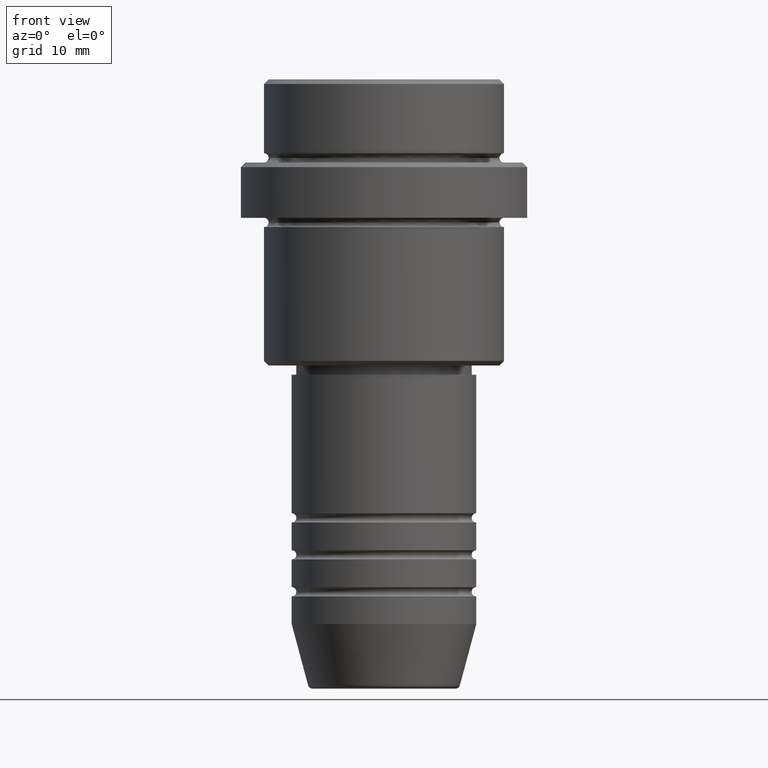
[diagram: clean part render]
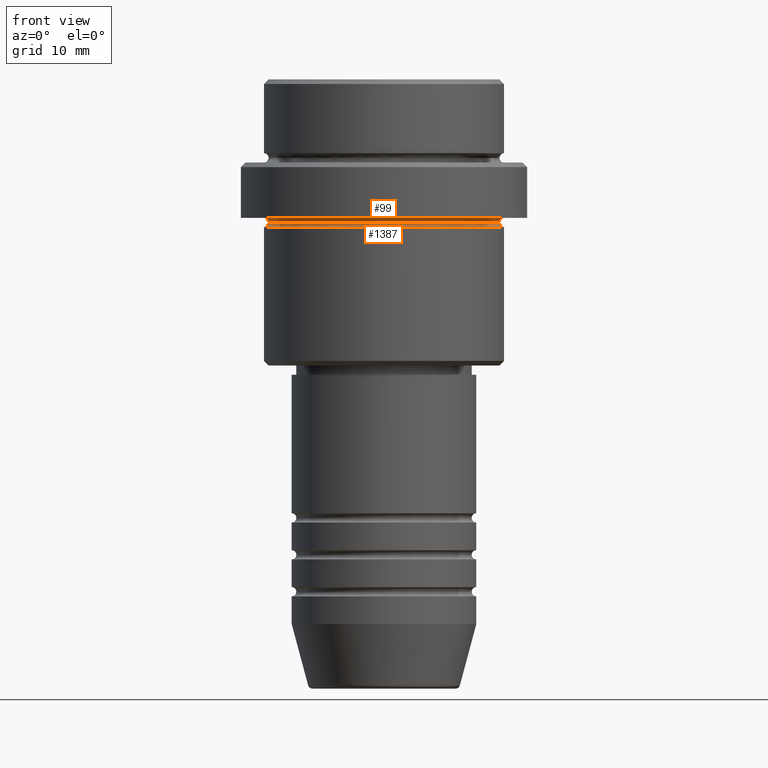
[diagram: same view with one multi-face feature highlighted, each face labeled with its STEP entity id]
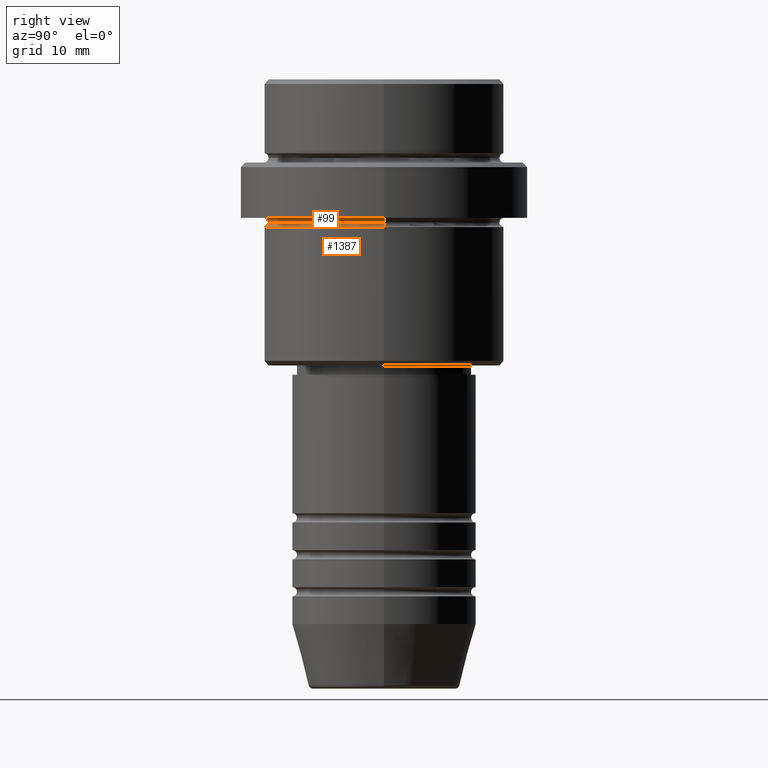
[diagram: same view with one multi-face feature highlighted, each face labeled with its STEP entity id]
A machine part, front view. The highlighted faces form ONE feature: a constant-radius fillet chain: 2 tangent blend faces with common blend radius 0.5 mm. The faces share edges in the B-rep.
A second angle (right view) of the same feature is appended — it is thin or edge-on in the first view.
Their STEP definitions:
[1] entity #1387 (Torus):
#3 = EDGE_CURVE ( 'NONE', #1304, #48, #64, .T. ) ;
#48 = VERTEX_POINT ( 'NONE', #1043 ) ;
#64 = CIRCLE ( 'NONE', #739, 0.5000000000000004441 ) ;
#74 = DIRECTION ( 'NONE',  ( -1.000000000000000000, 0.000000000000000000, 0.000000000000000000 ) ) ;
#155 = AXIS2_PLACEMENT_3D ( 'NONE', #808, #276, #74 ) ;
#191 = CIRCLE ( 'NONE', #881, 0.5000000000000004441 ) ;
#218 = ORIENTED_EDGE ( 'NONE', *, *, #1131, .T. ) ;
#223 = DIRECTION ( 'NONE',  ( 0.000000000000000000, 0.000000000000000000, -1.000000000000000000 ) ) ;
#246 = CIRCLE ( 'NONE', #770, 12.49999999999999467 ) ;
#276 = DIRECTION ( 'NONE',  ( 0.000000000000000000, 0.000000000000000000, -1.000000000000000000 ) ) ;
#364 = VERTEX_POINT ( 'NONE', #1193 ) ;
#384 = DIRECTION ( 'NONE',  ( -1.000000000000000000, 0.000000000000000000, 0.000000000000000000 ) ) ;
#425 = DIRECTION ( 'NONE',  ( -0.000000000000000000, -1.000000000000000000, -0.000000000000000000 ) ) ;
#483 = DIRECTION ( 'NONE',  ( -1.000000000000000000, -1.224646799147353454E-16, 0.000000000000000000 ) ) ;
#549 = DIRECTION ( 'NONE',  ( 1.000000000000000000, 0.000000000000000000, 0.000000000000000000 ) ) ;
#569 = CARTESIAN_POINT ( 'NONE',  ( 13.00000000000000000, 0.000000000000000000, -16.00000000000000000 ) ) ;
#574 = ORIENTED_EDGE ( 'NONE', *, *, #691, .F. ) ;
#591 = DIRECTION ( 'NONE',  ( -1.224646799147353207E-16, 1.000000000000000000, 0.000000000000000000 ) ) ;
#688 = DIRECTION ( 'NONE',  ( 0.000000000000000000, 0.000000000000000000, -1.000000000000000000 ) ) ;
#691 = EDGE_CURVE ( 'NONE', #1244, #364, #191, .T. ) ;
#739 = AXIS2_PLACEMENT_3D ( 'NONE', #926, #591, #483 ) ;
#758 = CARTESIAN_POINT ( 'NONE',  ( 0.000000000000000000, 0.000000000000000000, -16.00000000000000000 ) ) ;
#770 = AXIS2_PLACEMENT_3D ( 'NONE', #1050, #688, #384 ) ;
#808 = CARTESIAN_POINT ( 'NONE',  ( 0.000000000000000000, 0.000000000000000000, -15.50000000000000000 ) ) ;
#825 = FACE_OUTER_BOUND ( 'NONE', #1359, .T. ) ;
#826 = ORIENTED_EDGE ( 'NONE', *, *, #3, .T. ) ;
#866 = TOROIDAL_SURFACE ( 'NONE', #155, 12.99999999999999645, 0.5000000000000000000 ) ;
#880 = CARTESIAN_POINT ( 'NONE',  ( -12.99999999999999645, 0.000000000000000000, -15.50000000000000000 ) ) ;
#881 = AXIS2_PLACEMENT_3D ( 'NONE', #880, #425, #223 ) ;
#926 = CARTESIAN_POINT ( 'NONE',  ( 12.99999999999999645, 1.592040838891558701E-15, -15.50000000000000000 ) ) ;
#935 = ORIENTED_EDGE ( 'NONE', *, *, #1373, .T. ) ;
#987 = DIRECTION ( 'NONE',  ( -0.000000000000000000, -0.000000000000000000, 1.000000000000000000 ) ) ;
#1043 = CARTESIAN_POINT ( 'NONE',  ( 12.49999999999999467, 1.561424668912874914E-15, -15.50000000000000000 ) ) ;
#1050 = CARTESIAN_POINT ( 'NONE',  ( 0.000000000000000000, 0.000000000000000000, -15.50000000000000000 ) ) ;
#1131 = EDGE_CURVE ( 'NONE', #1244, #1304, #1294, .T. ) ;
#1193 = CARTESIAN_POINT ( 'NONE',  ( -12.49999999999999467, 0.000000000000000000, -15.50000000000000000 ) ) ;
#1218 = CARTESIAN_POINT ( 'NONE',  ( -13.00000000000000000, 1.592040838891559095E-15, -16.00000000000000000 ) ) ;
#1244 = VERTEX_POINT ( 'NONE', #1218 ) ;
#1272 = AXIS2_PLACEMENT_3D ( 'NONE', #758, #987, #549 ) ;
#1294 = CIRCLE ( 'NONE', #1272, 13.00000000000000000 ) ;
#1304 = VERTEX_POINT ( 'NONE', #569 ) ;
#1359 = EDGE_LOOP ( 'NONE', ( #218, #826, #935, #574 ) ) ;
#1373 = EDGE_CURVE ( 'NONE', #48, #364, #246, .T. ) ;
#1387 = ADVANCED_FACE ( 'NONE', ( #825 ), #866, .F. ) ;
[2] entity #99 (Torus):
#5 = CARTESIAN_POINT ( 'NONE',  ( -12.99999999999999645, 0.000000000000000000, -15.50000000000000000 ) ) ;
#14 = DIRECTION ( 'NONE',  ( 0.000000000000000000, 0.000000000000000000, -1.000000000000000000 ) ) ;
#48 = VERTEX_POINT ( 'NONE', #1043 ) ;
#56 = DIRECTION ( 'NONE',  ( -1.224646799147353207E-16, 1.000000000000000000, 0.000000000000000000 ) ) ;
#99 = ADVANCED_FACE ( 'NONE', ( #596 ), #1111, .F. ) ;
#169 = AXIS2_PLACEMENT_3D ( 'NONE', #1117, #56, #477 ) ;
#246 = CIRCLE ( 'NONE', #770, 12.49999999999999467 ) ;
#275 = DIRECTION ( 'NONE',  ( 0.000000000000000000, 0.000000000000000000, -1.000000000000000000 ) ) ;
#305 = CIRCLE ( 'NONE', #1052, 12.99999999999999645 ) ;
#314 = VERTEX_POINT ( 'NONE', #1081 ) ;
#340 = DIRECTION ( 'NONE',  ( -0.000000000000000000, -0.000000000000000000, 1.000000000000000000 ) ) ;
#361 = ORIENTED_EDGE ( 'NONE', *, *, #1109, .F. ) ;
#364 = VERTEX_POINT ( 'NONE', #1193 ) ;
#384 = DIRECTION ( 'NONE',  ( -1.000000000000000000, 0.000000000000000000, 0.000000000000000000 ) ) ;
#386 = EDGE_CURVE ( 'NONE', #48, #314, #789, .T. ) ;
#477 = DIRECTION ( 'NONE',  ( -1.000000000000000000, -1.224646799147353454E-16, 0.000000000000000000 ) ) ;
#497 = ORIENTED_EDGE ( 'NONE', *, *, #386, .T. ) ;
#515 = CARTESIAN_POINT ( 'NONE',  ( -12.99999999999999645, 0.000000000000000000, -15.00000000000000000 ) ) ;
#528 = VERTEX_POINT ( 'NONE', #515 ) ;
#596 = FACE_OUTER_BOUND ( 'NONE', #1143, .T. ) ;
#688 = DIRECTION ( 'NONE',  ( 0.000000000000000000, 0.000000000000000000, -1.000000000000000000 ) ) ;
#770 = AXIS2_PLACEMENT_3D ( 'NONE', #1050, #688, #384 ) ;
#784 = DIRECTION ( 'NONE',  ( -1.000000000000000000, 0.000000000000000000, 0.000000000000000000 ) ) ;
#789 = CIRCLE ( 'NONE', #169, 0.5000000000000004441 ) ;
#811 = ORIENTED_EDGE ( 'NONE', *, *, #1373, .F. ) ;
#913 = AXIS2_PLACEMENT_3D ( 'NONE', #5, #1196, #14 ) ;
#952 = AXIS2_PLACEMENT_3D ( 'NONE', #1279, #275, #1270 ) ;
#976 = CIRCLE ( 'NONE', #913, 0.5000000000000004441 ) ;
#1043 = CARTESIAN_POINT ( 'NONE',  ( 12.49999999999999467, 1.561424668912874914E-15, -15.50000000000000000 ) ) ;
#1050 = CARTESIAN_POINT ( 'NONE',  ( 0.000000000000000000, 0.000000000000000000, -15.50000000000000000 ) ) ;
#1052 = AXIS2_PLACEMENT_3D ( 'NONE', #1105, #340, #784 ) ;
#1081 = CARTESIAN_POINT ( 'NONE',  ( 12.99999999999999645, 1.592040838891558701E-15, -15.00000000000000000 ) ) ;
#1105 = CARTESIAN_POINT ( 'NONE',  ( 0.000000000000000000, 0.000000000000000000, -15.00000000000000000 ) ) ;
#1109 = EDGE_CURVE ( 'NONE', #364, #528, #976, .T. ) ;
#1111 = TOROIDAL_SURFACE ( 'NONE', #952, 12.99999999999999645, 0.5000000000000000000 ) ;
#1117 = CARTESIAN_POINT ( 'NONE',  ( 12.99999999999999645, 1.592040838891558701E-15, -15.50000000000000000 ) ) ;
#1143 = EDGE_LOOP ( 'NONE', ( #811, #497, #1219, #361 ) ) ;
#1193 = CARTESIAN_POINT ( 'NONE',  ( -12.49999999999999467, 0.000000000000000000, -15.50000000000000000 ) ) ;
#1196 = DIRECTION ( 'NONE',  ( -0.000000000000000000, -1.000000000000000000, -0.000000000000000000 ) ) ;
#1219 = ORIENTED_EDGE ( 'NONE', *, *, #1238, .F. ) ;
#1238 = EDGE_CURVE ( 'NONE', #528, #314, #305, .T. ) ;
#1270 = DIRECTION ( 'NONE',  ( -1.000000000000000000, 0.000000000000000000, 0.000000000000000000 ) ) ;
#1279 = CARTESIAN_POINT ( 'NONE',  ( 0.000000000000000000, 0.000000000000000000, -15.50000000000000000 ) ) ;
#1373 = EDGE_CURVE ( 'NONE', #48, #364, #246, .T. ) ;